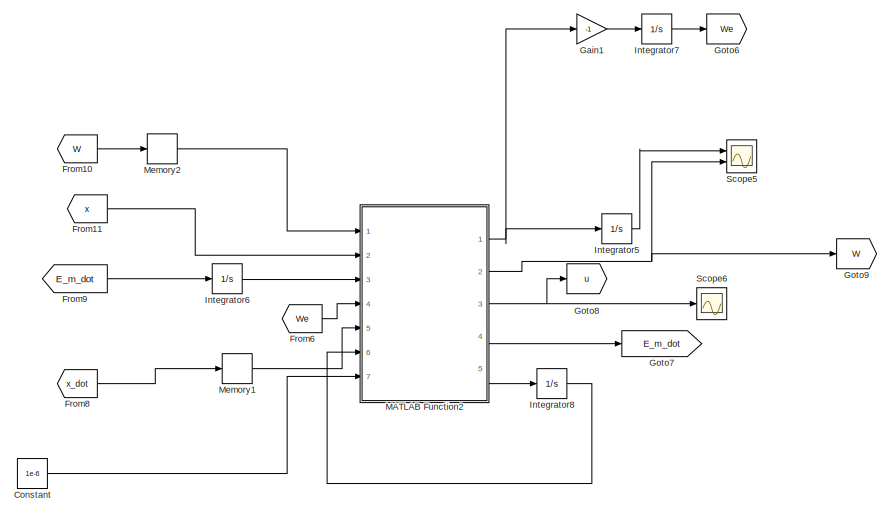
[diagram: root canvas - part 1/2, top right region]
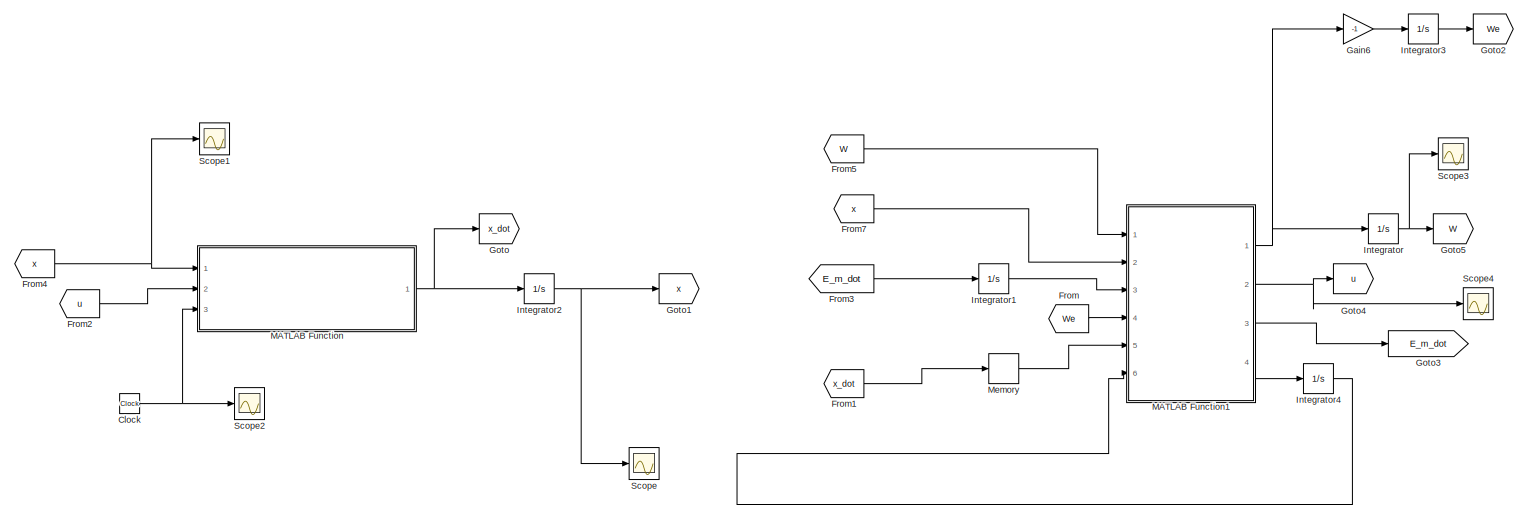
[diagram: root canvas - part 2/2, bottom left region]
MODEL slx_6c1242c6c9f2
KIND model
CONFIG AbsTol = auto
CONFIG EnableMultiTasking = off
CONFIG FixedStep = auto
CONFIG MaxStep = auto
CONFIG MinStep = auto
CONFIG RelTol = 1e-3
CONFIG SampleTimeConstraint = Unconstrained
CONFIG SolverName = VariableStepAuto
CONFIG StartTime = 0.0
CONFIG StopTime = 10
BLOCK [Clock] Clock
  DisplayTime = on
BLOCK [Constant] Constant
  Commented = on
  Value = 1e-6
BLOCK [From] From
  GotoTag = We
BLOCK [From] From1
  GotoTag = x_dot
BLOCK [From] From10
  Commented = on
  GotoTag = W
BLOCK [From] From11
  Commented = on
  GotoTag = x
BLOCK [From] From2
  GotoTag = u
BLOCK [From] From3
  GotoTag = E_m_dot
BLOCK [From] From4
  GotoTag = x
BLOCK [From] From5
  GotoTag = W
BLOCK [From] From6
  Commented = on
  GotoTag = We
BLOCK [From] From7
  GotoTag = x
BLOCK [From] From8
  Commented = on
  GotoTag = x_dot
BLOCK [From] From9
  Commented = on
  GotoTag = E_m_dot
BLOCK [Gain] Gain1
  Commented = on
  Gain = -1
BLOCK [Gain] Gain6
  Gain = -1
BLOCK [Goto] Goto
  GotoTag = x_dot
BLOCK [Goto] Goto1
  GotoTag = x
BLOCK [Goto] Goto2
  GotoTag = We
BLOCK [Goto] Goto3
  GotoTag = E_m_dot
BLOCK [Goto] Goto4
  GotoTag = u
BLOCK [Goto] Goto5
  GotoTag = W
BLOCK [Goto] Goto6
  Commented = on
  GotoTag = We
BLOCK [Goto] Goto7
  Commented = on
  GotoTag = E_m_dot
BLOCK [Goto] Goto8
  Commented = on
  GotoTag = u
BLOCK [Goto] Goto9
  Commented = on
  GotoTag = W
BLOCK [Integrator] Integrator
  InitialCondition = [0.4, 0.5, 1.6, 0.2, 1.8, 0.3, 1.2, 1, 0.7, 1.5]'
  Ports = [1, 1]
BLOCK [Integrator] Integrator1
  Ports = [1, 1]
BLOCK [Integrator] Integrator2
  InitialCondition = [1; 0.5;-1;-0.5]
  Ports = [1, 1]
BLOCK [Integrator] Integrator3
  InitialCondition = [0;0;0;0;0;0;0;0;0;0]
  Ports = [1, 1]
BLOCK [Integrator] Integrator4
  InitialCondition = [0;0;0;0]
  Ports = [1, 1]
BLOCK [Integrator] Integrator5
  Commented = on
  InitialCondition = [0.4, 0.5, 1.6, 0.2, 1.8, 0.3, 1.2, 1, 0.7, 1.5]'
  Ports = [1, 1]
BLOCK [Integrator] Integrator6
  Commented = on
  Ports = [1, 1]
BLOCK [Integrator] Integrator7
  Commented = on
  InitialCondition = [0;0;0;0;0;0;0;0;0;0]
  Ports = [1, 1]
BLOCK [Integrator] Integrator8
  Commented = on
  InitialCondition = [0;0;0;0]
  Ports = [1, 1]
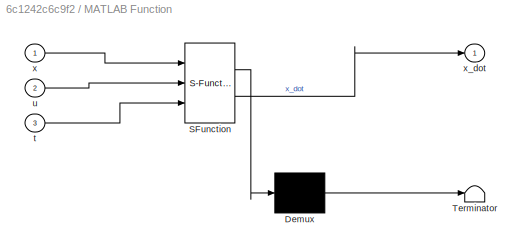
BLOCK [SubSystem] MATLAB Function
  ErrorFcn = Stateflow.Translate.translate
  PermitHierarchicalResolution = ExplicitOnly
  Ports = [3, 1]
  RequestExecContextInheritance = off
  SFBlockType = MATLAB Function
  TreatAsAtomicUnit = on
BLOCK [Demux] MATLAB Function/ Demux 
  Outputs = 1
  Ports = [1, 1]
BLOCK [S-Function] MATLAB Function/ SFunction 
  EnableBusSupport = on
  FunctionName = sf_sfun
  PortCounts = [3 2]
  Ports = [3, 2]
  SFcnIsStateOwnerBlock = off
  SFunctionDeploymentMode = off
  Tag = Stateflow S-Function 2
BLOCK [Terminator] MATLAB Function/ Terminator 
BLOCK [Inport] MATLAB Function/t
  Port = 3
BLOCK [Inport] MATLAB Function/u
  Port = 2
BLOCK [Inport] MATLAB Function/x
BLOCK [Outport] MATLAB Function/x_dot
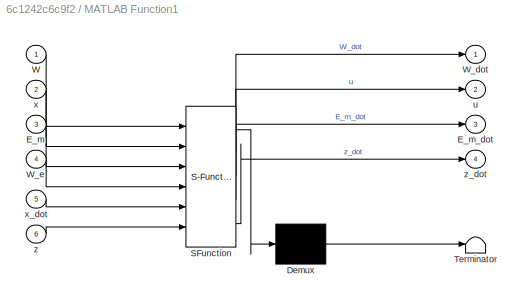
BLOCK [SubSystem] MATLAB Function1
  ErrorFcn = Stateflow.Translate.translate
  PermitHierarchicalResolution = ExplicitOnly
  Ports = [6, 4]
  RequestExecContextInheritance = off
  SFBlockType = MATLAB Function
  TreatAsAtomicUnit = on
BLOCK [Demux] MATLAB Function1/ Demux 
  Outputs = 1
  Ports = [1, 1]
BLOCK [S-Function] MATLAB Function1/ SFunction 
  EnableBusSupport = on
  FunctionName = sf_sfun
  PortCounts = [6 5]
  Ports = [6, 5]
  SFcnIsStateOwnerBlock = off
  SFunctionDeploymentMode = off
  Tag = Stateflow S-Function 1
BLOCK [Terminator] MATLAB Function1/ Terminator 
BLOCK [Inport] MATLAB Function1/E_m
  Port = 3
BLOCK [Outport] MATLAB Function1/E_m_dot
  Port = 3
BLOCK [Inport] MATLAB Function1/W
BLOCK [Outport] MATLAB Function1/W_dot
BLOCK [Inport] MATLAB Function1/W_e
  Port = 4
BLOCK [Outport] MATLAB Function1/u
  Port = 2
BLOCK [Inport] MATLAB Function1/x
  Port = 2
BLOCK [Inport] MATLAB Function1/x_dot
  Port = 5
BLOCK [Inport] MATLAB Function1/z
  Port = 6
BLOCK [Outport] MATLAB Function1/z_dot
  Port = 4
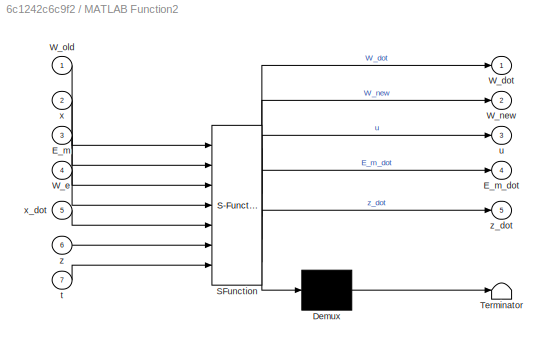
BLOCK [SubSystem] MATLAB Function2
  Commented = on
  ErrorFcn = Stateflow.Translate.translate
  PermitHierarchicalResolution = ExplicitOnly
  Ports = [7, 5]
  RequestExecContextInheritance = off
  SFBlockType = MATLAB Function
  TreatAsAtomicUnit = on
BLOCK [Demux] MATLAB Function2/ Demux 
  Outputs = 1
  Ports = [1, 1]
BLOCK [S-Function] MATLAB Function2/ SFunction 
  EnableBusSupport = on
  FunctionName = sf_sfun
  PortCounts = [7 6]
  Ports = [7, 6]
  SFcnIsStateOwnerBlock = off
  SFunctionDeploymentMode = off
  Tag = Stateflow S-Function 3
BLOCK [Terminator] MATLAB Function2/ Terminator 
BLOCK [Inport] MATLAB Function2/E_m
  Port = 3
BLOCK [Outport] MATLAB Function2/E_m_dot
  Port = 4
BLOCK [Outport] MATLAB Function2/W_dot
BLOCK [Inport] MATLAB Function2/W_e
  Port = 4
BLOCK [Outport] MATLAB Function2/W_new
  Port = 2
BLOCK [Inport] MATLAB Function2/W_old
BLOCK [Inport] MATLAB Function2/t
  Port = 7
BLOCK [Outport] MATLAB Function2/u
  Port = 3
BLOCK [Inport] MATLAB Function2/x
  Port = 2
BLOCK [Inport] MATLAB Function2/x_dot
  Port = 5
BLOCK [Inport] MATLAB Function2/z
  Port = 6
BLOCK [Outport] MATLAB Function2/z_dot
  Port = 5
BLOCK [Memory] Memory
  InitialCondition = [0;0;0;0]
BLOCK [Memory] Memory1
  Commented = on
  InitialCondition = [0;0;0;0]
BLOCK [Memory] Memory2
  Commented = on
  InitialCondition = [0.4, 0.5, 1.6, 0.2, 1.8, 0.3, 1.2, 1, 0.7, 1.5]'
BLOCK [Scope] Scope
  Floating = off
  NumInputPorts = 1
  Ports = [1]
  ScopeSpecificationString = Simulink.scopes.TimeScopeBlockCfg('CurrentConfiguration', extmgr.ConfigurationSet(extmgr.Configuration('Core','General UI',true),extmgr.Configuration('Core','Source UI',true),extmgr.Configuration('Sources','WiredSimulink',true,'DataLoggingVariableName','ScopeData2'),extmgr.Configuration('Visuals','Time Domain',true,'SerializedDisplays',{struct('MinYLimReal','-1.25','MaxYLimReal','1.25','YLabelReal...<+1475ch>
BLOCK [Scope] Scope1
  Floating = off
  NumInputPorts = 1
  Ports = [1]
  ScopeSpecificationString = Simulink.scopes.TimeScopeBlockCfg('CurrentConfiguration', extmgr.ConfigurationSet(extmgr.Configuration('Core','General UI',true),extmgr.Configuration('Core','Source UI',true),extmgr.Configuration('Sources','WiredSimulink',true,'DataLoggingVariableName','ScopeData3'),extmgr.Configuration('Visuals','Time Domain',true,'SerializedDisplays',{struct('MinYLimReal','-1.58906','MaxYLimReal','2.43759','YLab...<+1493ch>
BLOCK [Scope] Scope2
  Floating = off
  NumInputPorts = 1
  Ports = [1]
  ScopeSpecificationString = Simulink.scopes.TimeScopeBlockCfg('CurrentConfiguration', extmgr.ConfigurationSet(extmgr.Configuration('Core','General UI',true),extmgr.Configuration('Core','Source UI',true),extmgr.Configuration('Sources','WiredSimulink',true,'DataLoggingVariableName','ScopeData4'),extmgr.Configuration('Visuals','Time Domain',true,'SerializedDisplays',{struct('MinYLimReal','-0.05754','MaxYLimReal','0.51786','YLab...<+1437ch>
BLOCK [Scope] Scope3
  Floating = off
  NumInputPorts = 1
  Ports = [1]
  ScopeSpecificationString = Simulink.scopes.TimeScopeBlockCfg('CurrentConfiguration', extmgr.ConfigurationSet(extmgr.Configuration('Core','General UI',true),extmgr.Configuration('Core','Source UI',true),extmgr.Configuration('Sources','WiredSimulink',true,'DataLoggingVariableName','ScopeData1'),extmgr.Configuration('Visuals','Time Domain',true,'SerializedDisplays',{struct('MinYLimReal','-0.84669','MaxYLimReal','2.27403','YLab...<+1581ch>
BLOCK [Scope] Scope4
  Floating = off
  NumInputPorts = 1
  Ports = [1]
  ScopeSpecificationString = Simulink.scopes.TimeScopeBlockCfg('CurrentConfiguration', extmgr.ConfigurationSet(extmgr.Configuration('Core','General UI',true),extmgr.Configuration('Core','Source UI',true),extmgr.Configuration('Sources','WiredSimulink',true),extmgr.Configuration('Visuals','Time Domain',true,'SerializedDisplays',{struct('MinYLimReal','-1960575.55772','MaxYLimReal','1106616.96384','YLabelReal','','MinYLimMag','  ...<+1482ch>
BLOCK [Scope] Scope5
  Commented = on
  Floating = off
  NumInputPorts = 2
  Ports = [2]
  ScopeSpecificationString = Simulink.scopes.TimeScopeBlockCfg('CurrentConfiguration', extmgr.ConfigurationSet(extmgr.Configuration('Core','General UI',true),extmgr.Configuration('Core','Source UI',true),extmgr.Configuration('Sources','WiredSimulink',true,'DataLoggingVariableName','ScopeData1'),extmgr.Configuration('Visuals','Time Domain',true,'SerializedDisplays',{struct('MinYLimReal','-0.77921','MaxYLimReal','2.29734','YLab...<+2449ch>
BLOCK [Scope] Scope6
  Commented = on
  Floating = off
  NumInputPorts = 1
  Ports = [1]
  ScopeSpecificationString = Simulink.scopes.TimeScopeBlockCfg('CurrentConfiguration', extmgr.ConfigurationSet(extmgr.Configuration('Core','General UI',true),extmgr.Configuration('Core','Source UI',true),extmgr.Configuration('Sources','WiredSimulink',true,'DataLoggingVariableName','ScopeData2'),extmgr.Configuration('Visuals','Time Domain',true,'SerializedDisplays',{struct('MinYLimReal','-1960575.55772','MaxYLimReal','1106616....<+1521ch>
NET Clock:1 -> MATLAB Function:3, Scope2:1
LINE Constant:1 -> MATLAB Function2:7
LINE From10:1 -> Memory2:1
LINE From11:1 -> MATLAB Function2:2
LINE From1:1 -> Memory:1
LINE From2:1 -> MATLAB Function:2
LINE From3:1 -> Integrator1:1
NET From4:1 -> MATLAB Function:1, Scope1:1
LINE From5:1 -> MATLAB Function1:1
LINE From6:1 -> MATLAB Function2:4
LINE From7:1 -> MATLAB Function1:2
LINE From8:1 -> Memory1:1
LINE From9:1 -> Integrator6:1
LINE From:1 -> MATLAB Function1:4
LINE Gain1:1 -> Integrator7:1
LINE Gain6:1 -> Integrator3:1
LINE Integrator1:1 -> MATLAB Function1:3
NET Integrator2:1 -> Goto1:1, Scope:1
LINE Integrator3:1 -> Goto2:1
LINE Integrator4:1 -> MATLAB Function1:6
LINE Integrator5:1 -> Scope5:1
LINE Integrator6:1 -> MATLAB Function2:3
LINE Integrator7:1 -> Goto6:1
LINE Integrator8:1 -> MATLAB Function2:6
NET Integrator:1 -> Goto5:1, Scope3:1
NET MATLAB Function1:1 -> Gain6:1, Integrator:1
NET MATLAB Function1:2 -> Goto4:1, Scope4:1
LINE MATLAB Function1:3 -> Goto3:1
LINE MATLAB Function1:4 -> Integrator4:1
NET MATLAB Function2:1 -> Gain1:1, Integrator5:1
NET MATLAB Function2:2 -> Goto9:1, Scope5:2
NET MATLAB Function2:3 -> Goto8:1, Scope6:1
LINE MATLAB Function2:4 -> Goto7:1
LINE MATLAB Function2:5 -> Integrator8:1
NET MATLAB Function:1 -> Goto:1, Integrator2:1
LINE Memory1:1 -> MATLAB Function2:5
LINE Memory2:1 -> MATLAB Function2:1
LINE Memory:1 -> MATLAB Function1:5
note: NET lines group one-source signal fan-out (src -> all destinations, sorted); 1:1 wires keep LINE
CHART MATLAB Function1 states=1 transitions=1
  STATE_LABEL 'eML_blk_kernel()'
  STATE_LABEL 'SCRIPT:\nfunction [W_dot, u, E_m_dot, z_dot] = fcn(W, x, E_m, W_e, x_dot,z)\n%% parameter\n f =  [x(2)-x(1); \n      -0.5*(x(1)+x(2)) + 0.5*x(2)*(cos(2*x(1))+2)^2; \n      x(4)-x(3); \n      -x(3)-0.5*x(4)+0.5*(x(3)^2)*x(4)];\n g = [0 0; \n      cos(2*x(1))+2 0; \n      0 0; \n      0 x(3)+2*exp(-x(4))];\n%% set up\n K = 10*eye(4);\n R = eye(2);\n Q = eye(4);\n I_c = 0.1;\n I_e = 0.1;\n nuy = 1;\n Grad_Sigma = [2*x...<+723ch>'
CHART MATLAB Function states=1 transitions=1
  STATE_LABEL 'eML_blk_kernel()'
  STATE_LABEL 'SCRIPT:\nfunction x_dot = fcn(x, u, t)\n f =  [x(2)-x(1); \n      -0.5*(x(1)+x(2)) + 0.5*x(2)*(cos(2*x(1))+2)^2; \n      x(4)-x(3); \n      -x(3)-0.5*x(4)+0.5*(x(3)^2)*x(4)];\n g = [0 0; \n      cos(2*x(1))+2 0; \n      0 0; \n      0 x(3)+2*exp(-x(4))];\n z = [0.6*x(1)*cos(x(2)*x(3)); \n      0.05*x(2)*x(3)*cos(x(4)^2); \n      0.15*x(4)*cos(pi*t)*cos(x(3)+x(4)); \n      0.4*x(4)*sin(3*pi*t)*exp(-2*x(2))];\n d...<+50ch>'
CHART MATLAB Function2 states=1 transitions=1
  STATE_LABEL 'eML_blk_kernel()'
  STATE_LABEL 'SCRIPT:\nfunction [W_dot,W_new, u, E_m_dot, z_dot] = fcn(W_old, x, E_m, W_e, x_dot,z, t)\n%% parameter\n f =  [x(2)-x(1); \n      -0.5*(x(1)+x(2)) + 0.5*x(2)*(cos(2*x(1))+2)^2; \n      x(4)-x(3); \n      -x(3)-0.5*x(4)+0.5*(x(3)^2)*x(4)];\n g = [0 0; \n      cos(2*x(1))+2 0; \n      0 0; \n      0 x(3)+2*exp(-x(4))];\n%% set up\n K = 10*eye(4);\n R = eye(2);\n Q = eye(4);\n I_c = 0.1;\n I_e = 0.1;\n nuy = 1;\n Grad...<+778ch>'
CHART  states=0 transitions=0
CHART  states=0 transitions=0
CHART  states=0 transitions=0
